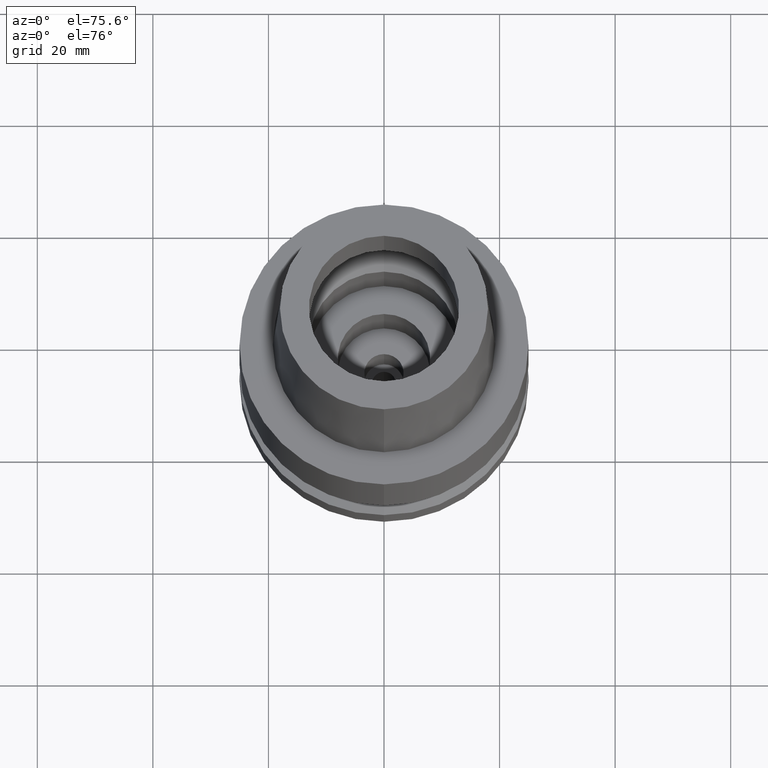
[diagram: clean part render]
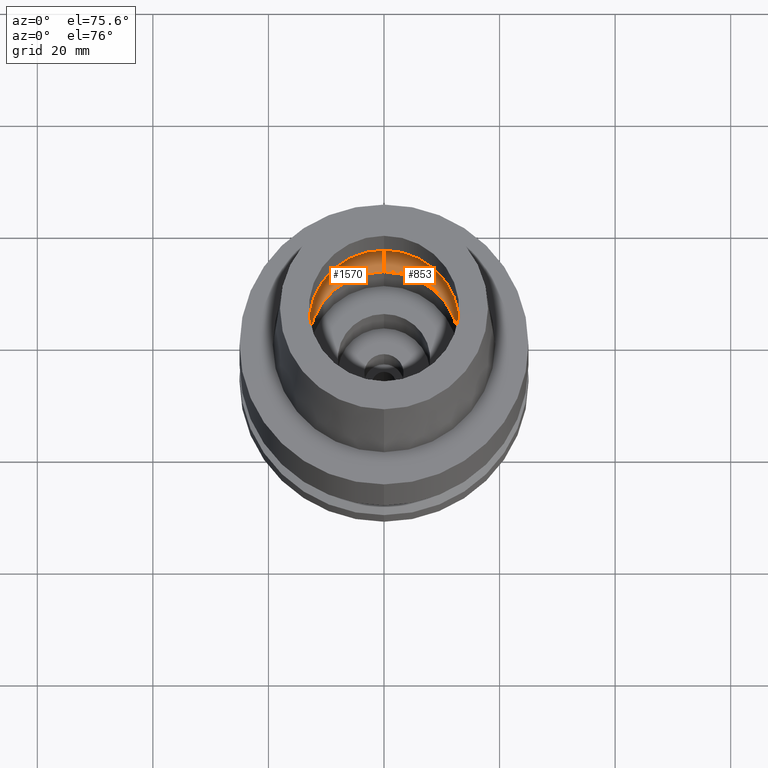
[diagram: same view with one multi-face feature highlighted, each face labeled with its STEP entity id]
A machine part, auxiliary view. The highlighted faces form ONE feature: a constant-radius fillet chain: 2 tangent blend faces with common blend radius 6 mm. The faces share edges in the B-rep.
Their STEP definitions:
[1] entity #853 (Torus):
#42 = VERTEX_POINT ( 'NONE', #1819 ) ;
#168 = CARTESIAN_POINT ( 'NONE',  ( 0.0000000000000000000, -10.00000000000000000, 5.245999999999999552 ) ) ;
#174 = TOROIDAL_SURFACE ( 'NONE', #2400, 10.00000000000000000, 6.000000000000000000 ) ;
#308 = AXIS2_PLACEMENT_3D ( 'NONE', #602, #1417, #1297 ) ;
#311 = EDGE_CURVE ( 'NONE', #1766, #1919, #2103, .T. ) ;
#401 = AXIS2_PLACEMENT_3D ( 'NONE', #1935, #2171, #2350 ) ;
#506 = ORIENTED_EDGE ( 'NONE', *, *, #2274, .F. ) ;
#602 = CARTESIAN_POINT ( 'NONE',  ( 0.0000000000000000000, 0.0000000000000000000, 5.245999999999999552 ) ) ;
#829 = ORIENTED_EDGE ( 'NONE', *, *, #1203, .F. ) ;
#842 = EDGE_LOOP ( 'NONE', ( #2506, #1757, #829, #506 ) ) ;
#853 = ADVANCED_FACE ( 'NONE', ( #2416 ), #174, .F. ) ;
#981 = DIRECTION ( 'NONE',  ( 0.0000000000000000000, 0.0000000000000000000, 1.000000000000000000 ) ) ;
#1005 = DIRECTION ( 'NONE',  ( -1.000000000000000000, 0.0000000000000000000, 0.0000000000000000000 ) ) ;
#1197 = AXIS2_PLACEMENT_3D ( 'NONE', #2203, #1373, #1763 ) ;
#1203 = EDGE_CURVE ( 'NONE', #2268, #1919, #1496, .T. ) ;
#1269 = CARTESIAN_POINT ( 'NONE',  ( 0.0000000000000000000, -13.00000000000000000, 0.04984757729338000487 ) ) ;
#1297 = DIRECTION ( 'NONE',  ( 0.0000000000000000000, 1.000000000000000000, 0.0000000000000000000 ) ) ;
#1373 = DIRECTION ( 'NONE',  ( 0.0000000000000000000, 0.0000000000000000000, 1.000000000000000000 ) ) ;
#1417 = DIRECTION ( 'NONE',  ( 0.0000000000000000000, 0.0000000000000000000, -1.000000000000000000 ) ) ;
#1496 = CIRCLE ( 'NONE', #308, 16.00000000000000000 ) ;
#1519 = CARTESIAN_POINT ( 'NONE',  ( 0.0000000000000000000, 16.00000000000000000, 5.245999999999999552 ) ) ;
#1614 = CARTESIAN_POINT ( 'NONE',  ( 0.0000000000000000000, 0.0000000000000000000, 5.245999999999999552 ) ) ;
#1757 = ORIENTED_EDGE ( 'NONE', *, *, #311, .T. ) ;
#1763 = DIRECTION ( 'NONE',  ( 0.0000000000000000000, -1.000000000000000000, 0.0000000000000000000 ) ) ;
#1766 = VERTEX_POINT ( 'NONE', #1269 ) ;
#1796 = CIRCLE ( 'NONE', #401, 6.000000000000000000 ) ;
#1818 = EDGE_CURVE ( 'NONE', #1766, #42, #2543, .T. ) ;
#1819 = CARTESIAN_POINT ( 'NONE',  ( 0.0000000000000000000, 13.00000000000000000, 0.04984757729338999688 ) ) ;
#1891 = DIRECTION ( 'NONE',  ( 0.0000000000000000000, -0.5000000000000169864, -0.8660254037844289376 ) ) ;
#1919 = VERTEX_POINT ( 'NONE', #2592 ) ;
#1935 = CARTESIAN_POINT ( 'NONE',  ( 0.0000000000000000000, 10.00000000000000000, 5.245999999999999552 ) ) ;
#2103 = CIRCLE ( 'NONE', #2185, 6.000000000000000000 ) ;
#2171 = DIRECTION ( 'NONE',  ( 1.000000000000000000, 0.0000000000000000000, 0.0000000000000000000 ) ) ;
#2185 = AXIS2_PLACEMENT_3D ( 'NONE', #168, #1005, #1891 ) ;
#2203 = CARTESIAN_POINT ( 'NONE',  ( 0.0000000000000000000, 0.0000000000000000000, 0.04984757729338000487 ) ) ;
#2268 = VERTEX_POINT ( 'NONE', #1519 ) ;
#2274 = EDGE_CURVE ( 'NONE', #42, #2268, #1796, .T. ) ;
#2350 = DIRECTION ( 'NONE',  ( 0.0000000000000000000, 0.5000000000000169864, -0.8660254037844289376 ) ) ;
#2400 = AXIS2_PLACEMENT_3D ( 'NONE', #1614, #981, #2445 ) ;
#2416 = FACE_OUTER_BOUND ( 'NONE', #842, .T. ) ;
#2445 = DIRECTION ( 'NONE',  ( 0.0000000000000000000, 1.000000000000000000, 0.0000000000000000000 ) ) ;
#2506 = ORIENTED_EDGE ( 'NONE', *, *, #1818, .F. ) ;
#2543 = CIRCLE ( 'NONE', #1197, 13.00000000000000000 ) ;
#2592 = CARTESIAN_POINT ( 'NONE',  ( 0.0000000000000000000, -16.00000000000000000, 5.245999999999999552 ) ) ;
[2] entity #1570 (Torus):
#42 = VERTEX_POINT ( 'NONE', #1819 ) ;
#47 = CARTESIAN_POINT ( 'NONE',  ( 0.0000000000000000000, 0.0000000000000000000, 0.04984757729338000487 ) ) ;
#131 = AXIS2_PLACEMENT_3D ( 'NONE', #2668, #346, #172 ) ;
#168 = CARTESIAN_POINT ( 'NONE',  ( 0.0000000000000000000, -10.00000000000000000, 5.245999999999999552 ) ) ;
#172 = DIRECTION ( 'NONE',  ( 0.0000000000000000000, 1.000000000000000000, 0.0000000000000000000 ) ) ;
#228 = AXIS2_PLACEMENT_3D ( 'NONE', #47, #259, #1905 ) ;
#259 = DIRECTION ( 'NONE',  ( 0.0000000000000000000, 0.0000000000000000000, 1.000000000000000000 ) ) ;
#311 = EDGE_CURVE ( 'NONE', #1766, #1919, #2103, .T. ) ;
#331 = ORIENTED_EDGE ( 'NONE', *, *, #2274, .T. ) ;
#346 = DIRECTION ( 'NONE',  ( 0.0000000000000000000, 0.0000000000000000000, 1.000000000000000000 ) ) ;
#401 = AXIS2_PLACEMENT_3D ( 'NONE', #1935, #2171, #2350 ) ;
#891 = ORIENTED_EDGE ( 'NONE', *, *, #2332, .F. ) ;
#908 = DIRECTION ( 'NONE',  ( 0.0000000000000000000, 0.0000000000000000000, -1.000000000000000000 ) ) ;
#1005 = DIRECTION ( 'NONE',  ( -1.000000000000000000, 0.0000000000000000000, 0.0000000000000000000 ) ) ;
#1015 = AXIS2_PLACEMENT_3D ( 'NONE', #1951, #908, #1742 ) ;
#1269 = CARTESIAN_POINT ( 'NONE',  ( 0.0000000000000000000, -13.00000000000000000, 0.04984757729338000487 ) ) ;
#1424 = FACE_OUTER_BOUND ( 'NONE', #1654, .T. ) ;
#1519 = CARTESIAN_POINT ( 'NONE',  ( 0.0000000000000000000, 16.00000000000000000, 5.245999999999999552 ) ) ;
#1570 = ADVANCED_FACE ( 'NONE', ( #1424 ), #2369, .F. ) ;
#1654 = EDGE_LOOP ( 'NONE', ( #1841, #2219, #891, #331 ) ) ;
#1695 = EDGE_CURVE ( 'NONE', #1919, #2268, #2541, .T. ) ;
#1742 = DIRECTION ( 'NONE',  ( 0.0000000000000000000, -1.000000000000000000, 0.0000000000000000000 ) ) ;
#1766 = VERTEX_POINT ( 'NONE', #1269 ) ;
#1796 = CIRCLE ( 'NONE', #401, 6.000000000000000000 ) ;
#1819 = CARTESIAN_POINT ( 'NONE',  ( 0.0000000000000000000, 13.00000000000000000, 0.04984757729338999688 ) ) ;
#1841 = ORIENTED_EDGE ( 'NONE', *, *, #1695, .F. ) ;
#1889 = CIRCLE ( 'NONE', #228, 13.00000000000000000 ) ;
#1891 = DIRECTION ( 'NONE',  ( 0.0000000000000000000, -0.5000000000000169864, -0.8660254037844289376 ) ) ;
#1905 = DIRECTION ( 'NONE',  ( 0.0000000000000000000, 1.000000000000000000, 0.0000000000000000000 ) ) ;
#1919 = VERTEX_POINT ( 'NONE', #2592 ) ;
#1935 = CARTESIAN_POINT ( 'NONE',  ( 0.0000000000000000000, 10.00000000000000000, 5.245999999999999552 ) ) ;
#1951 = CARTESIAN_POINT ( 'NONE',  ( 0.0000000000000000000, 0.0000000000000000000, 5.245999999999999552 ) ) ;
#2103 = CIRCLE ( 'NONE', #2185, 6.000000000000000000 ) ;
#2171 = DIRECTION ( 'NONE',  ( 1.000000000000000000, 0.0000000000000000000, 0.0000000000000000000 ) ) ;
#2185 = AXIS2_PLACEMENT_3D ( 'NONE', #168, #1005, #1891 ) ;
#2219 = ORIENTED_EDGE ( 'NONE', *, *, #311, .F. ) ;
#2268 = VERTEX_POINT ( 'NONE', #1519 ) ;
#2274 = EDGE_CURVE ( 'NONE', #42, #2268, #1796, .T. ) ;
#2332 = EDGE_CURVE ( 'NONE', #42, #1766, #1889, .T. ) ;
#2350 = DIRECTION ( 'NONE',  ( 0.0000000000000000000, 0.5000000000000169864, -0.8660254037844289376 ) ) ;
#2369 = TOROIDAL_SURFACE ( 'NONE', #131, 10.00000000000000000, 6.000000000000000000 ) ;
#2541 = CIRCLE ( 'NONE', #1015, 16.00000000000000000 ) ;
#2592 = CARTESIAN_POINT ( 'NONE',  ( 0.0000000000000000000, -16.00000000000000000, 5.245999999999999552 ) ) ;
#2668 = CARTESIAN_POINT ( 'NONE',  ( 0.0000000000000000000, 0.0000000000000000000, 5.245999999999999552 ) ) ;